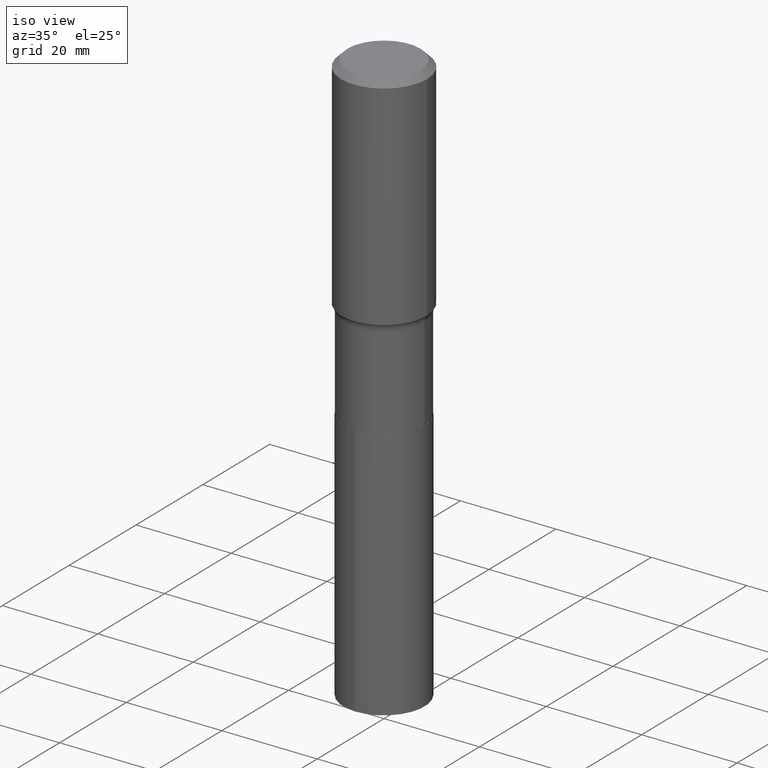
[diagram: clean part render]
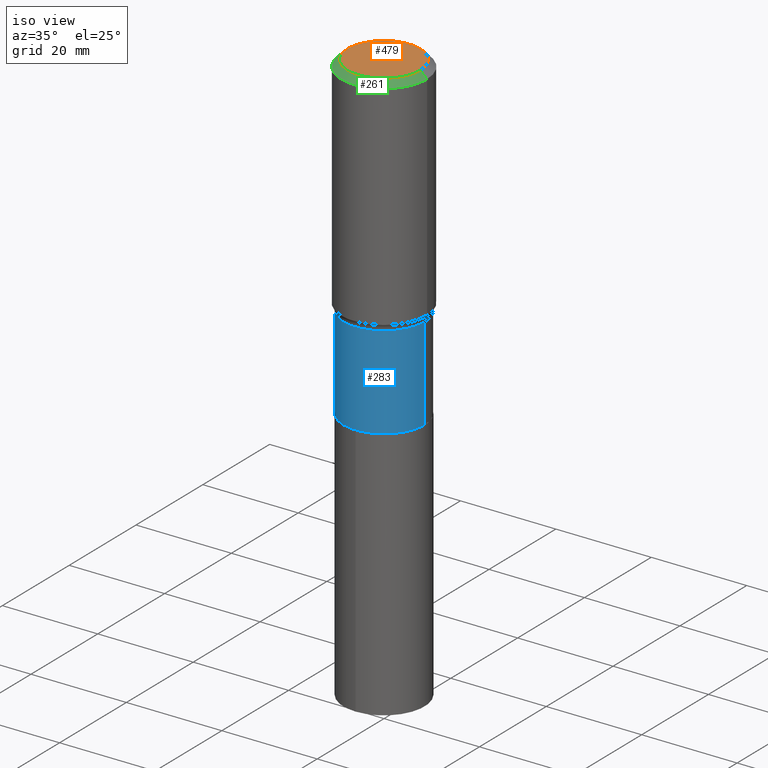
[diagram: same view with three faces highlighted in distinct colors, each labeled with its STEP entity id]
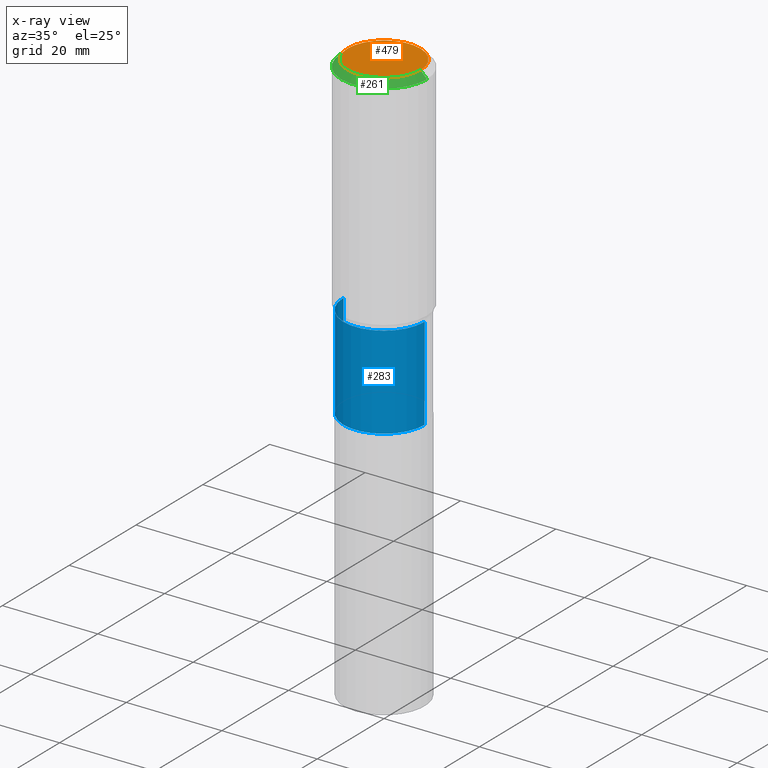
[diagram: x-ray of the same camera — body ghosted, the three highlighted faces saturated]
A machine part, iso view with three faces highlighted in distinct colors.
The next image is the same camera in x-ray (body ghosted, the three faces saturated) — at least one of them is partly hidden behind the body in this view.
Their STEP definitions:

[orange] entity #479 — the highlighted planar face has unit normal (0, -0, -1).
#6 = DIRECTION ( 'NONE',  ( 1.000000000000000000, -6.982962677686266711E-15, 4.876239486148337140E-29 ) ) ;
#7 = DIRECTION ( 'NONE',  ( 1.000000000000000000, -6.982962677686266711E-15, 4.876239486148337140E-29 ) ) ;
#19 = DIRECTION ( 'NONE',  ( 2.438088387897960049E-29, -3.491481338843145188E-15, -1.000000000000000000 ) ) ;
#47 = DIRECTION ( 'NONE',  ( -2.445468806185136597E-29, 3.491481338843145583E-15, 1.000000000000000000 ) ) ;
#54 = EDGE_CURVE ( 'NONE', #332, #301, #412, .T. ) ;
#74 = CARTESIAN_POINT ( 'NONE',  ( -0.3011975000000000069, 2.196041382043838255E-15, 4.101342130329452923E-18 ) ) ;
#104 = CIRCLE ( 'NONE', #300, 0.3011975000000000069 ) ;
#117 = ORIENTED_EDGE ( 'NONE', *, *, #54, .T. ) ;
#129 = CARTESIAN_POINT ( 'NONE',  ( -1.002970424325033577E-46, 1.431975951230896212E-32, 4.101342130344485961E-18 ) ) ;
#143 = CARTESIAN_POINT ( 'NONE',  ( -5.014852121625167883E-47, 7.159879756154481060E-33, 2.050671065172242981E-18 ) ) ;
#176 = DIRECTION ( 'NONE',  ( -1.000000000000000000, 6.982962677686265922E-15, -4.876176775795935793E-29 ) ) ;
#179 = AXIS2_PLACEMENT_3D ( 'NONE', #143, #19, #176 ) ;
#196 = EDGE_LOOP ( 'NONE', ( #117, #491 ) ) ;
#198 = DIRECTION ( 'NONE',  ( -2.445468806185136597E-29, 3.491481338843145583E-15, 1.000000000000000000 ) ) ;
#209 = AXIS2_PLACEMENT_3D ( 'NONE', #129, #198, #7 ) ;
#300 = AXIS2_PLACEMENT_3D ( 'NONE', #382, #47, #6 ) ;
#301 = VERTEX_POINT ( 'NONE', #380 ) ;
#332 = VERTEX_POINT ( 'NONE', #74 ) ;
#367 = EDGE_CURVE ( 'NONE', #301, #332, #104, .T. ) ;
#380 = CARTESIAN_POINT ( 'NONE',  ( 0.3011975000000000069, -2.341481636528497322E-15, 4.101342130360026675E-18 ) ) ;
#382 = CARTESIAN_POINT ( 'NONE',  ( -1.002970424325033577E-46, 1.431975951230896212E-32, 4.101342130344485961E-18 ) ) ;
#412 = CIRCLE ( 'NONE', #209, 0.3011975000000000069 ) ;
#426 = FACE_OUTER_BOUND ( 'NONE', #196, .T. ) ;
#473 = PLANE ( 'NONE',  #179 ) ;
#479 = ADVANCED_FACE ( 'NONE', ( #426 ), #473, .F. ) ;
#491 = ORIENTED_EDGE ( 'NONE', *, *, #367, .T. ) ;

[blue] entity #283 — the highlighted cylindrical surface (partial cylindrical patch) has radius 8.5001 mm, axis along (-0, 0, 1).
#9 = CARTESIAN_POINT ( 'NONE',  ( -0.3346499999999999475, -5.487428746790776908E-15, -1.868099999999999650 ) ) ;
#10 = CARTESIAN_POINT ( 'NONE',  ( 6.449434882552060429E-29, -9.208083734931026389E-15, -2.637299999999999756 ) ) ;
#29 = DIRECTION ( 'NONE',  ( -2.445468806185136877E-29, 3.491481338843145188E-15, 1.000000000000000000 ) ) ;
#30 = AXIS2_PLACEMENT_3D ( 'NONE', #10, #137, #384 ) ;
#33 = EDGE_LOOP ( 'NONE', ( #291, #482, #73, #185 ) ) ;
#38 = DIRECTION ( 'NONE',  ( -2.445468806185136597E-29, 3.491481338843145583E-15, 1.000000000000000000 ) ) ;
#40 = EDGE_CURVE ( 'NONE', #190, #192, #125, .T. ) ;
#42 = CARTESIAN_POINT ( 'NONE',  ( 0.3346499999999999475, -2.336848460087708691E-15, 1.631812558020109519E-29 ) ) ;
#43 = CARTESIAN_POINT ( 'NONE',  ( 4.568380276834452925E-29, -6.522436289092878802E-15, -1.868099999999999650 ) ) ;
#73 = ORIENTED_EDGE ( 'NONE', *, *, #40, .T. ) ;
#121 = AXIS2_PLACEMENT_3D ( 'NONE', #43, #38, #199 ) ;
#125 = LINE ( 'NONE', #42, #254 ) ;
#137 = DIRECTION ( 'NONE',  ( -2.445468806185136597E-29, 3.491481338843145583E-15, 1.000000000000000000 ) ) ;
#156 = VERTEX_POINT ( 'NONE', #9 ) ;
#166 = CARTESIAN_POINT ( 'NONE',  ( 0.3346499999999999475, -8.859284749180587099E-15, -1.868099999999999650 ) ) ;
#170 = CARTESIAN_POINT ( 'NONE',  ( 0.3346500000000000030, -1.154493219501873547E-14, -2.637299999999999756 ) ) ;
#185 = ORIENTED_EDGE ( 'NONE', *, *, #359, .F. ) ;
#190 = VERTEX_POINT ( 'NONE', #170 ) ;
#192 = VERTEX_POINT ( 'NONE', #166 ) ;
#195 = VECTOR ( 'NONE', #29, 39.37007874015748143 ) ;
#199 = DIRECTION ( 'NONE',  ( 1.000000000000000000, -6.982962677686266711E-15, 0.000000000000000000 ) ) ;
#202 = CARTESIAN_POINT ( 'NONE',  ( -0.3346500000000000030, -5.487428746790776119E-15, -2.637299999999999756 ) ) ;
#232 = CARTESIAN_POINT ( 'NONE',  ( 0.000000000000000000, 0.000000000000000000, 0.000000000000000000 ) ) ;
#254 = VECTOR ( 'NONE', #341, 39.37007874015748143 ) ;
#263 = DIRECTION ( 'NONE',  ( -2.445468806185136597E-29, 3.491481338843145583E-15, 1.000000000000000000 ) ) ;
#268 = EDGE_CURVE ( 'NONE', #375, #190, #424, .T. ) ;
#272 = CYLINDRICAL_SURFACE ( 'NONE', #336, 0.3346499999999999475 ) ;
#283 = ADVANCED_FACE ( 'NONE', ( #431 ), #272, .T. ) ;
#291 = ORIENTED_EDGE ( 'NONE', *, *, #368, .F. ) ;
#307 = CARTESIAN_POINT ( 'NONE',  ( -0.3346499999999999475, 2.377831265221174899E-15, -1.646121627953803670E-29 ) ) ;
#336 = AXIS2_PLACEMENT_3D ( 'NONE', #232, #263, #381 ) ;
#341 = DIRECTION ( 'NONE',  ( -2.445468806185136877E-29, 3.491481338843145188E-15, 1.000000000000000000 ) ) ;
#359 = EDGE_CURVE ( 'NONE', #156, #192, #413, .T. ) ;
#368 = EDGE_CURVE ( 'NONE', #375, #156, #411, .T. ) ;
#375 = VERTEX_POINT ( 'NONE', #202 ) ;
#381 = DIRECTION ( 'NONE',  ( 1.000000000000000000, -6.982962677686266711E-15, 4.876176775795935232E-29 ) ) ;
#384 = DIRECTION ( 'NONE',  ( 1.000000000000000000, -6.982962677686267499E-15, 0.000000000000000000 ) ) ;
#411 = LINE ( 'NONE', #307, #195 ) ;
#413 = CIRCLE ( 'NONE', #121, 0.3346499999999999475 ) ;
#424 = CIRCLE ( 'NONE', #30, 0.3346500000000000030 ) ;
#431 = FACE_OUTER_BOUND ( 'NONE', #33, .T. ) ;
#482 = ORIENTED_EDGE ( 'NONE', *, *, #268, .T. ) ;

[green] entity #261 — the highlighted conical surface has half-angle 45 deg.
#7 = DIRECTION ( 'NONE',  ( 1.000000000000000000, -6.982962677686266711E-15, 4.876239486148337140E-29 ) ) ;
#12 = CARTESIAN_POINT ( 'NONE',  ( 0.3543499999999999983, -2.659993786700990170E-15, -0.05315250000000035224 ) ) ;
#21 = AXIS2_PLACEMENT_3D ( 'NONE', #313, #318, #140 ) ;
#26 = ORIENTED_EDGE ( 'NONE', *, *, #288, .T. ) ;
#46 = DIRECTION ( 'NONE',  ( -2.445468806185136597E-29, 3.491481338843145583E-15, 1.000000000000000000 ) ) ;
#54 = EDGE_CURVE ( 'NONE', #332, #301, #412, .T. ) ;
#66 = VECTOR ( 'NONE', #391, 39.37007874015748143 ) ;
#74 = CARTESIAN_POINT ( 'NONE',  ( -0.3011975000000000069, 2.196041382043838255E-15, 4.101342130329452923E-18 ) ) ;
#76 = VERTEX_POINT ( 'NONE', #12 ) ;
#96 = CARTESIAN_POINT ( 'NONE',  ( -0.3543499999999999983, 2.288831862975267218E-15, -0.05315250000000035224 ) ) ;
#129 = CARTESIAN_POINT ( 'NONE',  ( -1.002970424325033577E-46, 1.431975951230896212E-32, 4.101342130344485961E-18 ) ) ;
#133 = LINE ( 'NONE', #437, #66 ) ;
#134 = DIRECTION ( 'NONE',  ( 1.000000000000000000, -6.982962677686266711E-15, 0.000000000000000000 ) ) ;
#140 = DIRECTION ( 'NONE',  ( -1.000000000000000000, 6.982962677686266711E-15, 0.000000000000000000 ) ) ;
#146 = EDGE_CURVE ( 'NONE', #374, #76, #163, .T. ) ;
#158 = CONICAL_SURFACE ( 'NONE', #21, 0.3543499999999999983, 0.7853981633974450594 ) ;
#162 = ORIENTED_EDGE ( 'NONE', *, *, #54, .F. ) ;
#163 = CIRCLE ( 'NONE', #435, 0.3543499999999999983 ) ;
#197 = ORIENTED_EDGE ( 'NONE', *, *, #440, .F. ) ;
#198 = DIRECTION ( 'NONE',  ( -2.445468806185136597E-29, 3.491481338843145583E-15, 1.000000000000000000 ) ) ;
#209 = AXIS2_PLACEMENT_3D ( 'NONE', #129, #198, #7 ) ;
#248 = ORIENTED_EDGE ( 'NONE', *, *, #146, .T. ) ;
#255 = VECTOR ( 'NONE', #295, 39.37007874015748143 ) ;
#261 = ADVANCED_FACE ( 'NONE', ( #387 ), #158, .T. ) ;
#288 = EDGE_CURVE ( 'NONE', #332, #374, #427, .T. ) ;
#295 = DIRECTION ( 'NONE',  ( -0.7071067811865452413, 2.468850131082233000E-15, -0.7071067811865497932 ) ) ;
#301 = VERTEX_POINT ( 'NONE', #380 ) ;
#313 = CARTESIAN_POINT ( 'NONE',  ( 1.299827807207563322E-30, -1.855809618628615256E-16, -0.05315250000000035224 ) ) ;
#318 = DIRECTION ( 'NONE',  ( 2.445468806185136597E-29, -3.491481338843145583E-15, -1.000000000000000000 ) ) ;
#332 = VERTEX_POINT ( 'NONE', #74 ) ;
#353 = CARTESIAN_POINT ( 'NONE',  ( 1.299827807207563322E-30, -1.855809618628615256E-16, -0.05315250000000035224 ) ) ;
#374 = VERTEX_POINT ( 'NONE', #418 ) ;
#379 = EDGE_LOOP ( 'NONE', ( #197, #162, #26, #248 ) ) ;
#380 = CARTESIAN_POINT ( 'NONE',  ( 0.3011975000000000069, -2.341481636528497322E-15, 4.101342130360026675E-18 ) ) ;
#387 = FACE_OUTER_BOUND ( 'NONE', #379, .T. ) ;
#391 = DIRECTION ( 'NONE',  ( 0.7071067811865452413, -7.319954787623248157E-15, -0.7071067811865497932 ) ) ;
#412 = CIRCLE ( 'NONE', #209, 0.3011975000000000069 ) ;
#418 = CARTESIAN_POINT ( 'NONE',  ( -0.3543499999999999983, -7.457395691680486953E-16, -0.05315250000000035224 ) ) ;
#427 = LINE ( 'NONE', #96, #255 ) ;
#435 = AXIS2_PLACEMENT_3D ( 'NONE', #353, #46, #134 ) ;
#437 = CARTESIAN_POINT ( 'NONE',  ( 0.3543499999999999983, -2.616598427373203868E-15, -0.05315250000000035224 ) ) ;
#440 = EDGE_CURVE ( 'NONE', #301, #76, #133, .T. ) ;